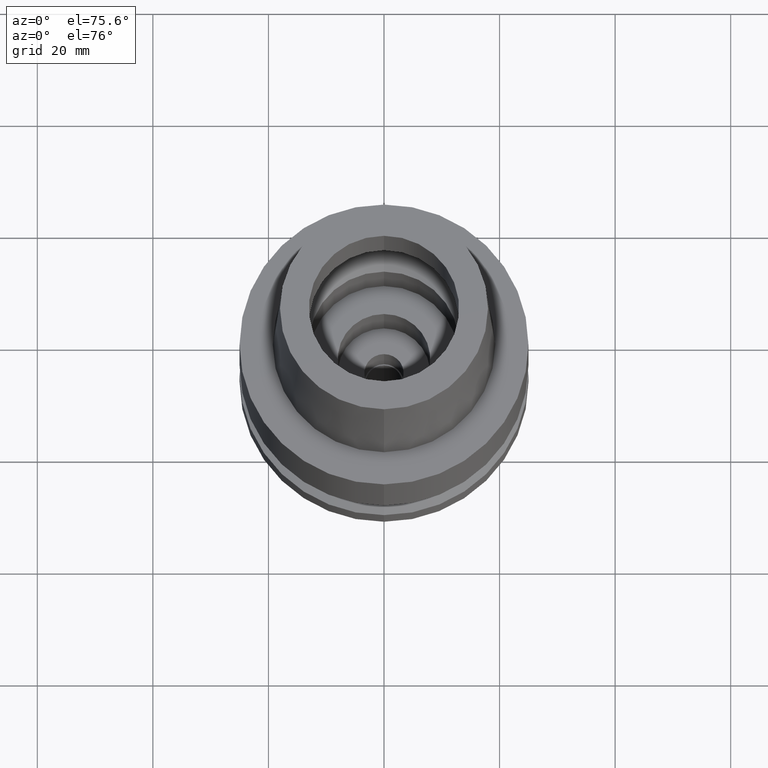
[diagram: clean part render]
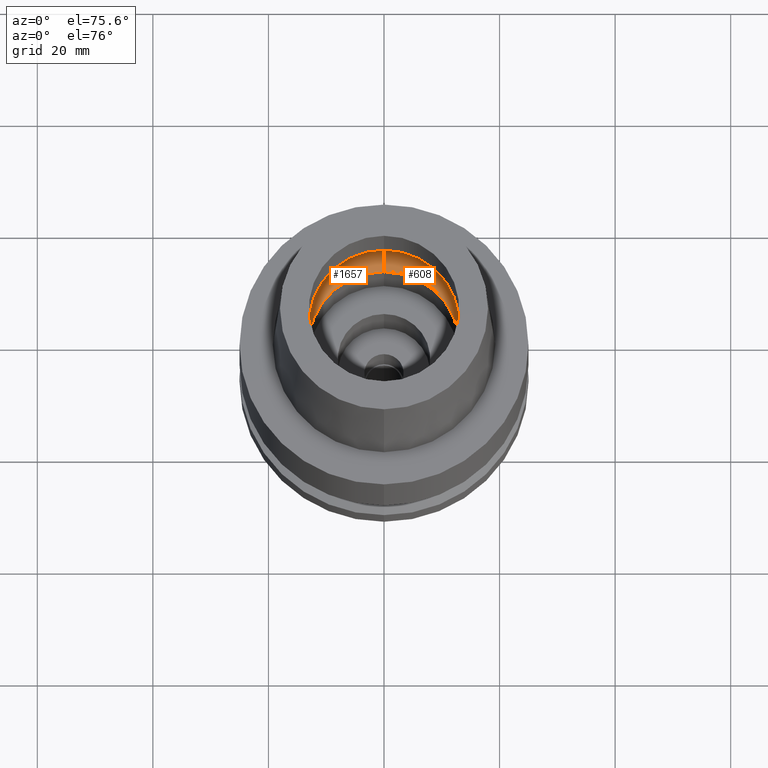
[diagram: same view with one multi-face feature highlighted, each face labeled with its STEP entity id]
A machine part, auxiliary view. The highlighted faces form ONE feature: a constant-radius fillet chain: 2 tangent blend faces with common blend radius 6 mm. The faces share edges in the B-rep.
Their STEP definitions:
[1] entity #608 (Torus):
#3 = CARTESIAN_POINT ( 'NONE',  ( 0.0000000000000000000, -10.00000000000000000, 5.245999999999999552 ) ) ;
#26 = DIRECTION ( 'NONE',  ( 0.0000000000000000000, 1.000000000000000000, 0.0000000000000000000 ) ) ;
#157 = DIRECTION ( 'NONE',  ( 0.0000000000000000000, 0.0000000000000000000, -1.000000000000000000 ) ) ;
#190 = DIRECTION ( 'NONE',  ( 0.0000000000000000000, -0.5000000000000169864, -0.8660254037844289376 ) ) ;
#196 = ORIENTED_EDGE ( 'NONE', *, *, #1071, .F. ) ;
#266 = CARTESIAN_POINT ( 'NONE',  ( 0.0000000000000000000, 16.00000000000000000, 5.245999999999999552 ) ) ;
#375 = DIRECTION ( 'NONE',  ( 0.0000000000000000000, -1.000000000000000000, 0.0000000000000000000 ) ) ;
#478 = DIRECTION ( 'NONE',  ( 0.0000000000000000000, 0.0000000000000000000, 1.000000000000000000 ) ) ;
#586 = AXIS2_PLACEMENT_3D ( 'NONE', #1421, #2012, #375 ) ;
#608 = ADVANCED_FACE ( 'NONE', ( #2447 ), #2317, .F. ) ;
#632 = EDGE_CURVE ( 'NONE', #1391, #639, #1646, .T. ) ;
#639 = VERTEX_POINT ( 'NONE', #2652 ) ;
#700 = CARTESIAN_POINT ( 'NONE',  ( 0.0000000000000000000, 0.0000000000000000000, 0.04984757729336999899 ) ) ;
#988 = EDGE_CURVE ( 'NONE', #1731, #639, #1344, .T. ) ;
#1002 = CIRCLE ( 'NONE', #1434, 13.00000000000000000 ) ;
#1013 = CARTESIAN_POINT ( 'NONE',  ( 0.0000000000000000000, 0.0000000000000000000, 5.245999999999999552 ) ) ;
#1071 = EDGE_CURVE ( 'NONE', #2663, #1391, #1130, .T. ) ;
#1130 = CIRCLE ( 'NONE', #1470, 6.000000000000000000 ) ;
#1316 = EDGE_LOOP ( 'NONE', ( #1995, #2665, #2194, #196 ) ) ;
#1344 = CIRCLE ( 'NONE', #2145, 6.000000000000000000 ) ;
#1391 = VERTEX_POINT ( 'NONE', #266 ) ;
#1421 = CARTESIAN_POINT ( 'NONE',  ( 0.0000000000000000000, 0.0000000000000000000, 5.245999999999999552 ) ) ;
#1434 = AXIS2_PLACEMENT_3D ( 'NONE', #700, #478, #1555 ) ;
#1439 = CARTESIAN_POINT ( 'NONE',  ( 0.0000000000000000000, 10.00000000000000000, 5.245999999999999552 ) ) ;
#1470 = AXIS2_PLACEMENT_3D ( 'NONE', #1439, #2257, #1660 ) ;
#1555 = DIRECTION ( 'NONE',  ( 0.0000000000000000000, -1.000000000000000000, 0.0000000000000000000 ) ) ;
#1645 = DIRECTION ( 'NONE',  ( -1.000000000000000000, 0.0000000000000000000, 0.0000000000000000000 ) ) ;
#1646 = CIRCLE ( 'NONE', #1932, 16.00000000000000000 ) ;
#1660 = DIRECTION ( 'NONE',  ( 0.0000000000000000000, 0.5000000000000169864, -0.8660254037844289376 ) ) ;
#1731 = VERTEX_POINT ( 'NONE', #2069 ) ;
#1932 = AXIS2_PLACEMENT_3D ( 'NONE', #1013, #157, #26 ) ;
#1949 = CARTESIAN_POINT ( 'NONE',  ( 0.0000000000000000000, 13.00000000000000000, 0.04984757729338000487 ) ) ;
#1995 = ORIENTED_EDGE ( 'NONE', *, *, #2053, .F. ) ;
#2012 = DIRECTION ( 'NONE',  ( 0.0000000000000000000, 0.0000000000000000000, -1.000000000000000000 ) ) ;
#2053 = EDGE_CURVE ( 'NONE', #1731, #2663, #1002, .T. ) ;
#2069 = CARTESIAN_POINT ( 'NONE',  ( 0.0000000000000000000, -13.00000000000000000, 0.04984757729336999899 ) ) ;
#2145 = AXIS2_PLACEMENT_3D ( 'NONE', #3, #1645, #190 ) ;
#2194 = ORIENTED_EDGE ( 'NONE', *, *, #632, .F. ) ;
#2257 = DIRECTION ( 'NONE',  ( 1.000000000000000000, 0.0000000000000000000, 0.0000000000000000000 ) ) ;
#2317 = TOROIDAL_SURFACE ( 'NONE', #586, 10.00000000000000000, 6.000000000000000000 ) ;
#2447 = FACE_OUTER_BOUND ( 'NONE', #1316, .T. ) ;
#2652 = CARTESIAN_POINT ( 'NONE',  ( 0.0000000000000000000, -16.00000000000000000, 5.245999999999999552 ) ) ;
#2663 = VERTEX_POINT ( 'NONE', #1949 ) ;
#2665 = ORIENTED_EDGE ( 'NONE', *, *, #988, .T. ) ;
[2] entity #1657 (Torus):
#3 = CARTESIAN_POINT ( 'NONE',  ( 0.0000000000000000000, -10.00000000000000000, 5.245999999999999552 ) ) ;
#179 = DIRECTION ( 'NONE',  ( 0.0000000000000000000, -1.000000000000000000, 0.0000000000000000000 ) ) ;
#190 = DIRECTION ( 'NONE',  ( 0.0000000000000000000, -0.5000000000000169864, -0.8660254037844289376 ) ) ;
#266 = CARTESIAN_POINT ( 'NONE',  ( 0.0000000000000000000, 16.00000000000000000, 5.245999999999999552 ) ) ;
#494 = TOROIDAL_SURFACE ( 'NONE', #2241, 10.00000000000000000, 6.000000000000000000 ) ;
#500 = DIRECTION ( 'NONE',  ( 0.0000000000000000000, 0.0000000000000000000, 1.000000000000000000 ) ) ;
#567 = DIRECTION ( 'NONE',  ( 0.0000000000000000000, 0.0000000000000000000, -1.000000000000000000 ) ) ;
#629 = CIRCLE ( 'NONE', #1044, 16.00000000000000000 ) ;
#639 = VERTEX_POINT ( 'NONE', #2652 ) ;
#902 = ORIENTED_EDGE ( 'NONE', *, *, #988, .F. ) ;
#988 = EDGE_CURVE ( 'NONE', #1731, #639, #1344, .T. ) ;
#1044 = AXIS2_PLACEMENT_3D ( 'NONE', #2676, #1228, #179 ) ;
#1071 = EDGE_CURVE ( 'NONE', #2663, #1391, #1130, .T. ) ;
#1130 = CIRCLE ( 'NONE', #1470, 6.000000000000000000 ) ;
#1143 = DIRECTION ( 'NONE',  ( 0.0000000000000000000, 1.000000000000000000, 0.0000000000000000000 ) ) ;
#1228 = DIRECTION ( 'NONE',  ( 0.0000000000000000000, 0.0000000000000000000, -1.000000000000000000 ) ) ;
#1344 = CIRCLE ( 'NONE', #2145, 6.000000000000000000 ) ;
#1391 = VERTEX_POINT ( 'NONE', #266 ) ;
#1415 = DIRECTION ( 'NONE',  ( 0.0000000000000000000, -1.000000000000000000, 0.0000000000000000000 ) ) ;
#1439 = CARTESIAN_POINT ( 'NONE',  ( 0.0000000000000000000, 10.00000000000000000, 5.245999999999999552 ) ) ;
#1470 = AXIS2_PLACEMENT_3D ( 'NONE', #1439, #2257, #1660 ) ;
#1645 = DIRECTION ( 'NONE',  ( -1.000000000000000000, 0.0000000000000000000, 0.0000000000000000000 ) ) ;
#1657 = ADVANCED_FACE ( 'NONE', ( #1817 ), #494, .F. ) ;
#1660 = DIRECTION ( 'NONE',  ( 0.0000000000000000000, 0.5000000000000169864, -0.8660254037844289376 ) ) ;
#1701 = ORIENTED_EDGE ( 'NONE', *, *, #1071, .T. ) ;
#1727 = CARTESIAN_POINT ( 'NONE',  ( 0.0000000000000000000, 0.0000000000000000000, 0.04984757729336999899 ) ) ;
#1730 = EDGE_CURVE ( 'NONE', #639, #1391, #629, .T. ) ;
#1731 = VERTEX_POINT ( 'NONE', #2069 ) ;
#1817 = FACE_OUTER_BOUND ( 'NONE', #2576, .T. ) ;
#1876 = CIRCLE ( 'NONE', #2668, 13.00000000000000000 ) ;
#1949 = CARTESIAN_POINT ( 'NONE',  ( 0.0000000000000000000, 13.00000000000000000, 0.04984757729338000487 ) ) ;
#2069 = CARTESIAN_POINT ( 'NONE',  ( 0.0000000000000000000, -13.00000000000000000, 0.04984757729336999899 ) ) ;
#2145 = AXIS2_PLACEMENT_3D ( 'NONE', #3, #1645, #190 ) ;
#2241 = AXIS2_PLACEMENT_3D ( 'NONE', #2647, #567, #1415 ) ;
#2257 = DIRECTION ( 'NONE',  ( 1.000000000000000000, 0.0000000000000000000, 0.0000000000000000000 ) ) ;
#2339 = ORIENTED_EDGE ( 'NONE', *, *, #1730, .F. ) ;
#2403 = ORIENTED_EDGE ( 'NONE', *, *, #2690, .F. ) ;
#2576 = EDGE_LOOP ( 'NONE', ( #2339, #902, #2403, #1701 ) ) ;
#2647 = CARTESIAN_POINT ( 'NONE',  ( 0.0000000000000000000, 0.0000000000000000000, 5.245999999999999552 ) ) ;
#2652 = CARTESIAN_POINT ( 'NONE',  ( 0.0000000000000000000, -16.00000000000000000, 5.245999999999999552 ) ) ;
#2663 = VERTEX_POINT ( 'NONE', #1949 ) ;
#2668 = AXIS2_PLACEMENT_3D ( 'NONE', #1727, #500, #1143 ) ;
#2676 = CARTESIAN_POINT ( 'NONE',  ( 0.0000000000000000000, 0.0000000000000000000, 5.245999999999999552 ) ) ;
#2690 = EDGE_CURVE ( 'NONE', #2663, #1731, #1876, .T. ) ;